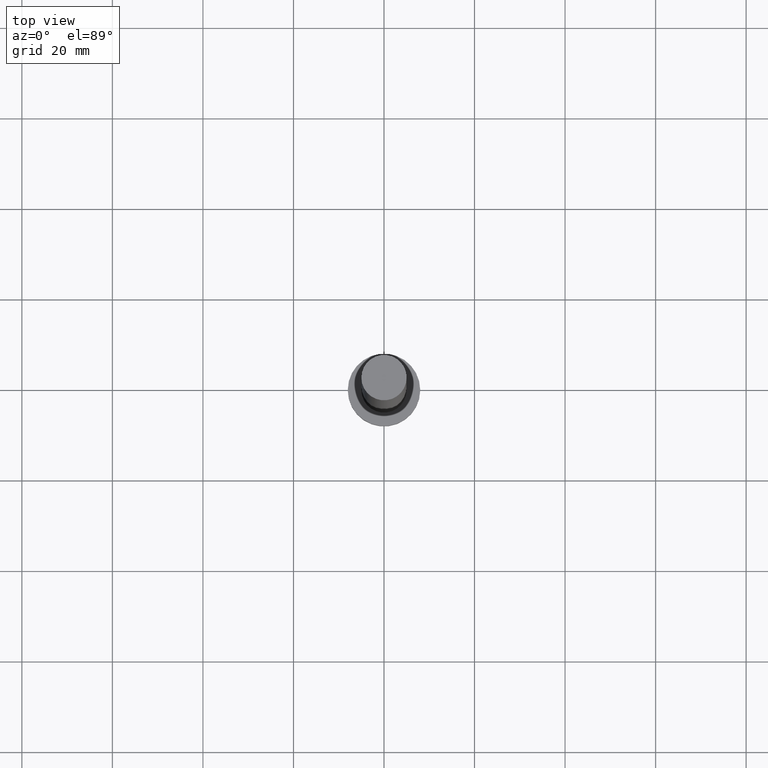
[diagram: clean part render]
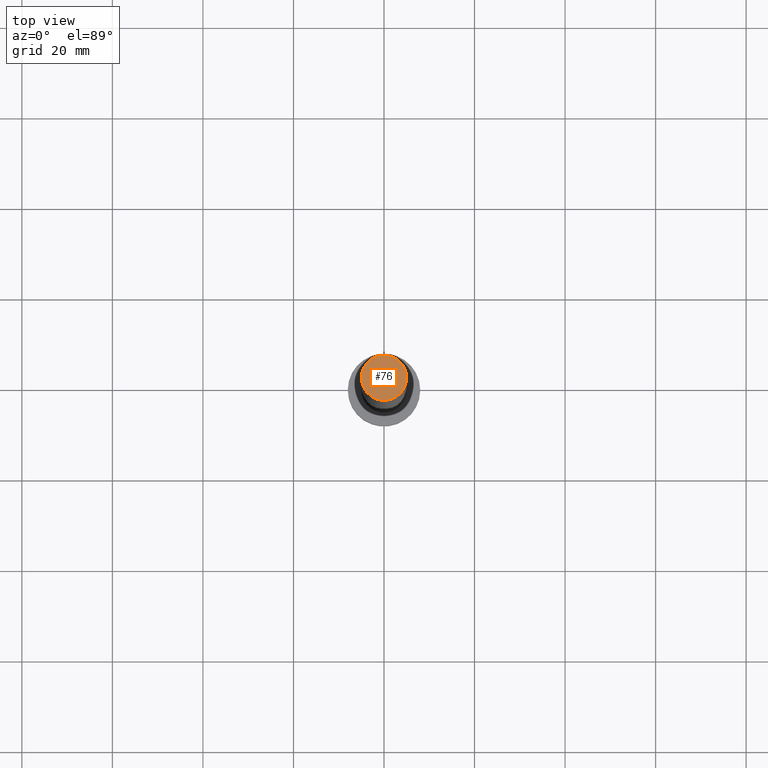
[diagram: same view with one face highlighted and labeled with its STEP entity id]
A machine part, top view. The second image highlights one B-rep face of the part: STEP entity #76.
In plain terms, the highlighted planar face has unit normal (0, 0, 1).
Its self-contained STEP definition (entity closure, byte-faithful):
#28 = CARTESIAN_POINT ( 'NONE',  ( 0.000000000000000000, 0.000000000000000000, 160.0000000000000000 ) ) ;
#33 = VERTEX_POINT ( 'NONE', #46 ) ;
#37 = ORIENTED_EDGE ( 'NONE', *, *, #81, .T. ) ;
#46 = CARTESIAN_POINT ( 'NONE',  ( 5.000000000000000888, 6.123233995736767268E-16, 160.0000000000000000 ) ) ;
#51 = CIRCLE ( 'NONE', #199, 5.000000000000000888 ) ;
#65 = DIRECTION ( 'NONE',  ( 1.000000000000000000, 0.000000000000000000, 0.000000000000000000 ) ) ;
#70 = CARTESIAN_POINT ( 'NONE',  ( 0.000000000000000000, 0.000000000000000000, 160.0000000000000000 ) ) ;
#76 = ADVANCED_FACE ( 'NONE', ( #126 ), #201, .T. ) ;
#79 = ORIENTED_EDGE ( 'NONE', *, *, #214, .T. ) ;
#81 = EDGE_CURVE ( 'NONE', #33, #83, #179, .T. ) ;
#83 = VERTEX_POINT ( 'NONE', #85 ) ;
#85 = CARTESIAN_POINT ( 'NONE',  ( -5.000000000000000888, 0.000000000000000000, 160.0000000000000000 ) ) ;
#98 = CARTESIAN_POINT ( 'NONE',  ( 0.000000000000000000, 0.000000000000000000, 160.0000000000000000 ) ) ;
#117 = DIRECTION ( 'NONE',  ( 0.000000000000000000, 0.000000000000000000, 1.000000000000000000 ) ) ;
#126 = FACE_OUTER_BOUND ( 'NONE', #175, .T. ) ;
#137 = AXIS2_PLACEMENT_3D ( 'NONE', #28, #169, #65 ) ;
#149 = AXIS2_PLACEMENT_3D ( 'NONE', #98, #185, #255 ) ;
#169 = DIRECTION ( 'NONE',  ( 0.000000000000000000, 0.000000000000000000, 1.000000000000000000 ) ) ;
#175 = EDGE_LOOP ( 'NONE', ( #79, #37 ) ) ;
#179 = CIRCLE ( 'NONE', #137, 5.000000000000000888 ) ;
#185 = DIRECTION ( 'NONE',  ( 0.000000000000000000, 0.000000000000000000, 1.000000000000000000 ) ) ;
#193 = DIRECTION ( 'NONE',  ( 1.000000000000000000, 0.000000000000000000, 0.000000000000000000 ) ) ;
#199 = AXIS2_PLACEMENT_3D ( 'NONE', #70, #117, #193 ) ;
#201 = PLANE ( 'NONE',  #149 ) ;
#214 = EDGE_CURVE ( 'NONE', #83, #33, #51, .T. ) ;
#255 = DIRECTION ( 'NONE',  ( 1.000000000000000000, 0.000000000000000000, -0.000000000000000000 ) ) ;